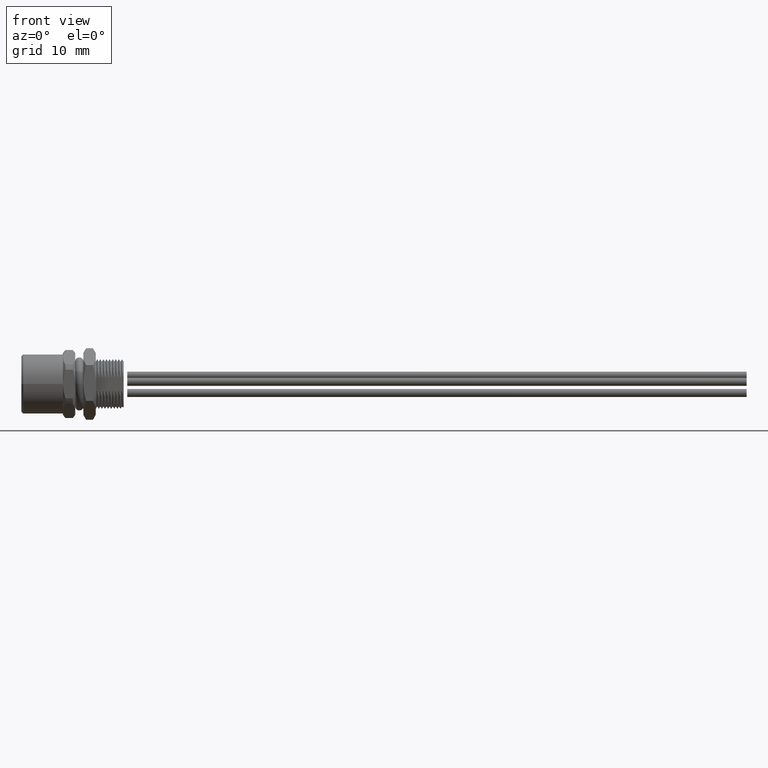
[diagram: clean part render]
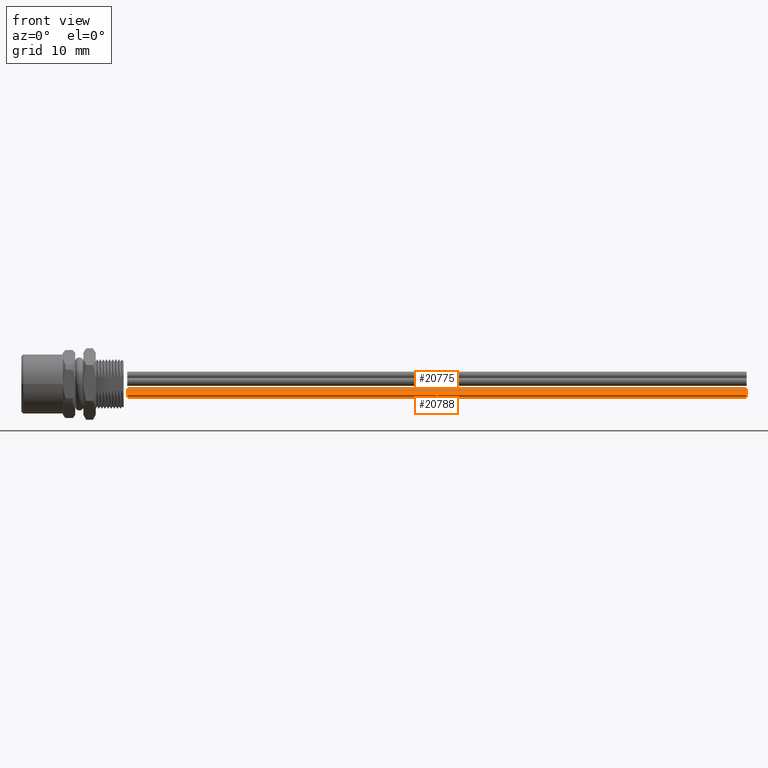
[diagram: same view with one multi-face feature highlighted, each face labeled with its STEP entity id]
A machine part, front view. The highlighted faces form ONE feature: a constant-radius fillet chain: 2 tangent blend faces with common blend radius 0.65 mm. The faces share edges in the B-rep.
Their STEP definitions:
[1] entity #20775 (Cylinder):
#20713=CARTESIAN_POINT('',(4.346456692913E0,-3.838582677165E-2,
-5.708661417323E-2));
#20714=DIRECTION('',(-1.E0,0.E0,0.E0));
#20715=DIRECTION('',(0.E0,-1.E0,0.E0));
#20716=AXIS2_PLACEMENT_3D('',#20713,#20714,#20715);
#20723=DIRECTION('',(-1.E0,0.E0,0.E0));
#20724=VECTOR('',#20723,3.937007874016E0);
#20725=CARTESIAN_POINT('',(4.346456692913E0,-6.397637795276E-2,
-5.708661417323E-2));
#20726=LINE('',#20725,#20724);
#20727=DIRECTION('',(-1.E0,0.E0,0.E0));
#20728=VECTOR('',#20727,3.937007874016E0);
#20729=CARTESIAN_POINT('',(4.346456692913E0,-1.279527559055E-2,
-5.708661417323E-2));
#20730=LINE('',#20729,#20728);
#20731=CARTESIAN_POINT('',(4.094488188976E-1,-3.838582677165E-2,
-5.708661417323E-2));
#20732=DIRECTION('',(-1.E0,0.E0,0.E0));
#20733=DIRECTION('',(0.E0,-1.E0,0.E0));
#20734=AXIS2_PLACEMENT_3D('',#20731,#20732,#20733);
#20741=CARTESIAN_POINT('',(4.346456692913E0,-6.397637795276E-2,
-5.708661417323E-2));
#20742=CARTESIAN_POINT('',(4.346456692913E0,-1.279527559055E-2,
-5.708661417323E-2));
#20743=VERTEX_POINT('',#20741);
#20744=VERTEX_POINT('',#20742);
#20745=CARTESIAN_POINT('',(4.094488188976E-1,-6.397637795276E-2,
-5.708661417323E-2));
#20746=CARTESIAN_POINT('',(4.094488188976E-1,-1.279527559055E-2,
-5.708661417323E-2));
#20747=VERTEX_POINT('',#20745);
#20748=VERTEX_POINT('',#20746);
#20761=CARTESIAN_POINT('',(4.346456692913E0,-3.838582677165E-2,
-5.708661417323E-2));
#20762=DIRECTION('',(-1.E0,0.E0,0.E0));
#20763=DIRECTION('',(0.E0,-1.E0,0.E0));
#20764=AXIS2_PLACEMENT_3D('',#20761,#20762,#20763);
#20765=CYLINDRICAL_SURFACE('',#20764,2.559055118110E-2);
#20766=ORIENTED_EDGE('',*,*,#20754,.F.);
#20768=ORIENTED_EDGE('',*,*,#20767,.T.);
#20770=ORIENTED_EDGE('',*,*,#20769,.T.);
#20772=ORIENTED_EDGE('',*,*,#20771,.F.);
#20773=EDGE_LOOP('',(#20766,#20768,#20770,#20772));
#20774=FACE_OUTER_BOUND('',#20773,.F.);
#20775=ADVANCED_FACE('',(#20774),#20765,.T.);
#20717=CIRCLE('',#20716,2.559055118110E-2);
#20735=CIRCLE('',#20734,2.559055118110E-2);
#20754=EDGE_CURVE('',#20743,#20744,#20717,.T.);
#20767=EDGE_CURVE('',#20743,#20747,#20726,.T.);
#20769=EDGE_CURVE('',#20747,#20748,#20735,.T.);
#20771=EDGE_CURVE('',#20744,#20748,#20730,.T.);
[2] entity #20788 (Cylinder):
#20718=CARTESIAN_POINT('',(4.346456692913E0,-3.838582677165E-2,
-5.708661417323E-2));
#20719=DIRECTION('',(-1.E0,0.E0,0.E0));
#20720=DIRECTION('',(0.E0,1.E0,0.E0));
#20721=AXIS2_PLACEMENT_3D('',#20718,#20719,#20720);
#20723=DIRECTION('',(-1.E0,0.E0,0.E0));
#20724=VECTOR('',#20723,3.937007874016E0);
#20725=CARTESIAN_POINT('',(4.346456692913E0,-6.397637795276E-2,
-5.708661417323E-2));
#20726=LINE('',#20725,#20724);
#20727=DIRECTION('',(-1.E0,0.E0,0.E0));
#20728=VECTOR('',#20727,3.937007874016E0);
#20729=CARTESIAN_POINT('',(4.346456692913E0,-1.279527559055E-2,
-5.708661417323E-2));
#20730=LINE('',#20729,#20728);
#20736=CARTESIAN_POINT('',(4.094488188976E-1,-3.838582677165E-2,
-5.708661417323E-2));
#20737=DIRECTION('',(-1.E0,0.E0,0.E0));
#20738=DIRECTION('',(0.E0,1.E0,0.E0));
#20739=AXIS2_PLACEMENT_3D('',#20736,#20737,#20738);
#20741=CARTESIAN_POINT('',(4.346456692913E0,-6.397637795276E-2,
-5.708661417323E-2));
#20742=CARTESIAN_POINT('',(4.346456692913E0,-1.279527559055E-2,
-5.708661417323E-2));
#20743=VERTEX_POINT('',#20741);
#20744=VERTEX_POINT('',#20742);
#20745=CARTESIAN_POINT('',(4.094488188976E-1,-6.397637795276E-2,
-5.708661417323E-2));
#20746=CARTESIAN_POINT('',(4.094488188976E-1,-1.279527559055E-2,
-5.708661417323E-2));
#20747=VERTEX_POINT('',#20745);
#20748=VERTEX_POINT('',#20746);
#20776=CARTESIAN_POINT('',(4.346456692913E0,-3.838582677165E-2,
-5.708661417323E-2));
#20777=DIRECTION('',(-1.E0,0.E0,0.E0));
#20778=DIRECTION('',(0.E0,-1.E0,0.E0));
#20779=AXIS2_PLACEMENT_3D('',#20776,#20777,#20778);
#20780=CYLINDRICAL_SURFACE('',#20779,2.559055118110E-2);
#20781=ORIENTED_EDGE('',*,*,#20756,.F.);
#20782=ORIENTED_EDGE('',*,*,#20771,.T.);
#20784=ORIENTED_EDGE('',*,*,#20783,.T.);
#20785=ORIENTED_EDGE('',*,*,#20767,.F.);
#20786=EDGE_LOOP('',(#20781,#20782,#20784,#20785));
#20787=FACE_OUTER_BOUND('',#20786,.F.);
#20788=ADVANCED_FACE('',(#20787),#20780,.T.);
#20722=CIRCLE('',#20721,2.559055118110E-2);
#20740=CIRCLE('',#20739,2.559055118110E-2);
#20756=EDGE_CURVE('',#20744,#20743,#20722,.T.);
#20767=EDGE_CURVE('',#20743,#20747,#20726,.T.);
#20771=EDGE_CURVE('',#20744,#20748,#20730,.T.);
#20783=EDGE_CURVE('',#20748,#20747,#20740,.T.);